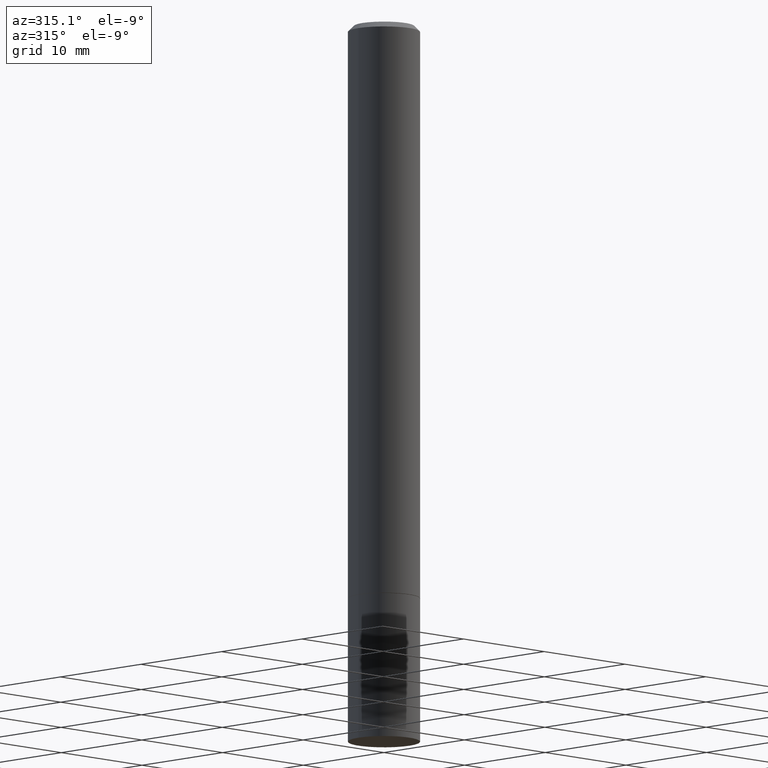
[diagram: clean part render]
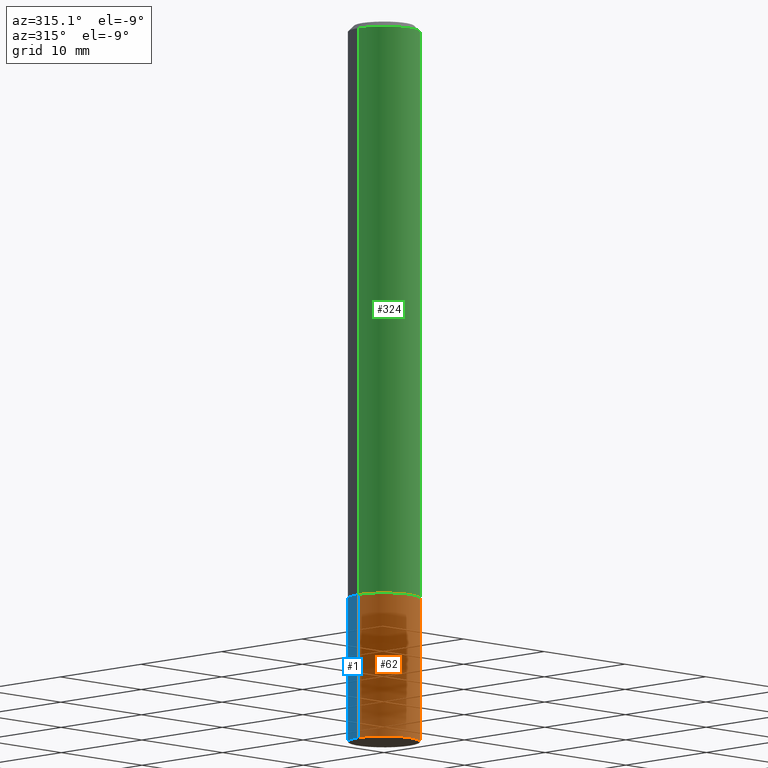
[diagram: same view with three faces highlighted in distinct colors, each labeled with its STEP entity id]
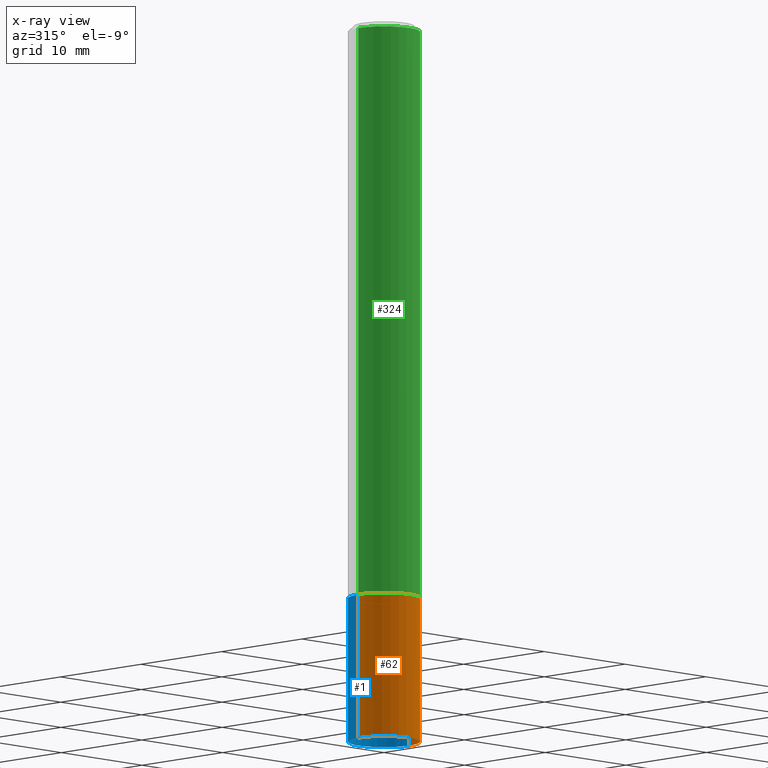
[diagram: x-ray of the same camera — body ghosted, the three highlighted faces saturated]
A machine part, auxiliary view with three faces highlighted in distinct colors.
The next image is the same camera in x-ray (body ghosted, the three faces saturated) — at least one of them is partly hidden behind the body in this view.
Their STEP definitions:

[orange] entity #62 — the highlighted cylindrical surface (edge-blend (fillet) strip) has radius 3.175 mm, axis along (-0, 0, 1).
#2 = LINE ( 'NONE', #174, #333 ) ;
#17 = AXIS2_PLACEMENT_3D ( 'NONE', #111, #34, #117 ) ;
#34 = DIRECTION ( 'NONE',  ( -2.445468806185136597E-29, 3.491481338843145583E-15, 1.000000000000000000 ) ) ;
#62 = ADVANCED_FACE ( 'NONE', ( #106 ), #258, .T. ) ;
#67 = CARTESIAN_POINT ( 'NONE',  ( 6.113672015462842613E-29, -8.728703347107864943E-15, -2.500000000000000000 ) ) ;
#70 = DIRECTION ( 'NONE',  ( -2.445468806185136597E-29, 3.491481338843145583E-15, 1.000000000000000000 ) ) ;
#86 = CARTESIAN_POINT ( 'NONE',  ( -0.1250000000000000000, -6.967654592696952427E-15, -2.000000000000000000 ) ) ;
#99 = ORIENTED_EDGE ( 'NONE', *, *, #347, .T. ) ;
#106 = FACE_OUTER_BOUND ( 'NONE', #160, .T. ) ;
#111 = CARTESIAN_POINT ( 'NONE',  ( 0.000000000000000000, 0.000000000000000000, 0.000000000000000000 ) ) ;
#117 = DIRECTION ( 'NONE',  ( 1.000000000000000000, -6.982962677686266711E-15, 4.876176775795935793E-29 ) ) ;
#123 = VERTEX_POINT ( 'NONE', #86 ) ;
#124 = DIRECTION ( 'NONE',  ( -2.445468806185136597E-29, 3.491481338843145583E-15, 1.000000000000000000 ) ) ;
#127 = CARTESIAN_POINT ( 'NONE',  ( 4.890937612370273194E-29, -6.982962677686291165E-15, -2.000000000000000000 ) ) ;
#134 = CIRCLE ( 'NONE', #230, 0.1250000000000000000 ) ;
#160 = EDGE_LOOP ( 'NONE', ( #289, #99, #318, #224 ) ) ;
#163 = CIRCLE ( 'NONE', #364, 0.1250000000000000000 ) ;
#174 = CARTESIAN_POINT ( 'NONE',  ( -0.1250000000000000000, 8.881784197001252323E-16, -6.148668862818632227E-30 ) ) ;
#180 = EDGE_CURVE ( 'NONE', #184, #123, #2, .T. ) ;
#184 = VERTEX_POINT ( 'NONE', #314 ) ;
#186 = VERTEX_POINT ( 'NONE', #256 ) ;
#207 = DIRECTION ( 'NONE',  ( -2.445468806185136877E-29, 3.491481338843145188E-15, 1.000000000000000000 ) ) ;
#219 = VERTEX_POINT ( 'NONE', #254 ) ;
#224 = ORIENTED_EDGE ( 'NONE', *, *, #363, .F. ) ;
#230 = AXIS2_PLACEMENT_3D ( 'NONE', #67, #124, #271 ) ;
#231 = CARTESIAN_POINT ( 'NONE',  ( 0.1250000000000000000, -8.728703347107833388E-16, 6.095220969744919741E-30 ) ) ;
#254 = CARTESIAN_POINT ( 'NONE',  ( 0.1250000000000000000, -7.855833012397075293E-15, -2.000000000000000000 ) ) ;
#256 = CARTESIAN_POINT ( 'NONE',  ( 0.1250000000000000000, -9.601573681818648281E-15, -2.500000000000000000 ) ) ;
#258 = CYLINDRICAL_SURFACE ( 'NONE', #17, 0.1250000000000000000 ) ;
#259 = EDGE_CURVE ( 'NONE', #186, #219, #337, .T. ) ;
#271 = DIRECTION ( 'NONE',  ( 1.000000000000000000, -6.982962677686270655E-15, 0.000000000000000000 ) ) ;
#285 = DIRECTION ( 'NONE',  ( -2.445468806185136877E-29, 3.491481338843145188E-15, 1.000000000000000000 ) ) ;
#289 = ORIENTED_EDGE ( 'NONE', *, *, #180, .F. ) ;
#293 = DIRECTION ( 'NONE',  ( 1.000000000000000000, -6.982962677686270655E-15, 0.000000000000000000 ) ) ;
#314 = CARTESIAN_POINT ( 'NONE',  ( -0.1250000000000000000, -6.967654592696952427E-15, -2.500000000000000000 ) ) ;
#318 = ORIENTED_EDGE ( 'NONE', *, *, #259, .T. ) ;
#333 = VECTOR ( 'NONE', #207, 39.37007874015748143 ) ;
#337 = LINE ( 'NONE', #231, #352 ) ;
#347 = EDGE_CURVE ( 'NONE', #184, #186, #134, .T. ) ;
#352 = VECTOR ( 'NONE', #285, 39.37007874015748143 ) ;
#363 = EDGE_CURVE ( 'NONE', #123, #219, #163, .T. ) ;
#364 = AXIS2_PLACEMENT_3D ( 'NONE', #127, #70, #293 ) ;

[blue] entity #1 — the highlighted cylindrical surface (edge-blend (fillet) strip) has radius 3.175 mm, axis along (-0, 0, 1).
#1 = ADVANCED_FACE ( 'NONE', ( #328 ), #240, .T. ) ;
#2 = LINE ( 'NONE', #174, #333 ) ;
#7 = DIRECTION ( 'NONE',  ( -2.445468806185136597E-29, 3.491481338843145583E-15, 1.000000000000000000 ) ) ;
#18 = CIRCLE ( 'NONE', #28, 0.1250000000000000000 ) ;
#28 = AXIS2_PLACEMENT_3D ( 'NONE', #291, #316, #159 ) ;
#42 = DIRECTION ( 'NONE',  ( -2.445468806185136597E-29, 3.491481338843145583E-15, 1.000000000000000000 ) ) ;
#86 = CARTESIAN_POINT ( 'NONE',  ( -0.1250000000000000000, -6.967654592696952427E-15, -2.000000000000000000 ) ) ;
#123 = VERTEX_POINT ( 'NONE', #86 ) ;
#131 = DIRECTION ( 'NONE',  ( 1.000000000000000000, -6.982962677686270655E-15, 0.000000000000000000 ) ) ;
#154 = CARTESIAN_POINT ( 'NONE',  ( 4.890937612370273194E-29, -6.982962677686291165E-15, -2.000000000000000000 ) ) ;
#158 = DIRECTION ( 'NONE',  ( 1.000000000000000000, -6.982962677686266711E-15, 4.876176775795935793E-29 ) ) ;
#159 = DIRECTION ( 'NONE',  ( 1.000000000000000000, -6.982962677686270655E-15, 0.000000000000000000 ) ) ;
#174 = CARTESIAN_POINT ( 'NONE',  ( -0.1250000000000000000, 8.881784197001252323E-16, -6.148668862818632227E-30 ) ) ;
#180 = EDGE_CURVE ( 'NONE', #184, #123, #2, .T. ) ;
#184 = VERTEX_POINT ( 'NONE', #314 ) ;
#186 = VERTEX_POINT ( 'NONE', #256 ) ;
#196 = EDGE_LOOP ( 'NONE', ( #206, #315, #237, #262 ) ) ;
#206 = ORIENTED_EDGE ( 'NONE', *, *, #335, .T. ) ;
#207 = DIRECTION ( 'NONE',  ( -2.445468806185136877E-29, 3.491481338843145188E-15, 1.000000000000000000 ) ) ;
#216 = CARTESIAN_POINT ( 'NONE',  ( 0.000000000000000000, 0.000000000000000000, 0.000000000000000000 ) ) ;
#219 = VERTEX_POINT ( 'NONE', #254 ) ;
#223 = AXIS2_PLACEMENT_3D ( 'NONE', #216, #42, #158 ) ;
#225 = AXIS2_PLACEMENT_3D ( 'NONE', #154, #7, #131 ) ;
#231 = CARTESIAN_POINT ( 'NONE',  ( 0.1250000000000000000, -8.728703347107833388E-16, 6.095220969744919741E-30 ) ) ;
#237 = ORIENTED_EDGE ( 'NONE', *, *, #336, .F. ) ;
#240 = CYLINDRICAL_SURFACE ( 'NONE', #223, 0.1250000000000000000 ) ;
#254 = CARTESIAN_POINT ( 'NONE',  ( 0.1250000000000000000, -7.855833012397075293E-15, -2.000000000000000000 ) ) ;
#256 = CARTESIAN_POINT ( 'NONE',  ( 0.1250000000000000000, -9.601573681818648281E-15, -2.500000000000000000 ) ) ;
#259 = EDGE_CURVE ( 'NONE', #186, #219, #337, .T. ) ;
#262 = ORIENTED_EDGE ( 'NONE', *, *, #259, .F. ) ;
#285 = DIRECTION ( 'NONE',  ( -2.445468806185136877E-29, 3.491481338843145188E-15, 1.000000000000000000 ) ) ;
#291 = CARTESIAN_POINT ( 'NONE',  ( 6.113672015462842613E-29, -8.728703347107864943E-15, -2.500000000000000000 ) ) ;
#312 = CIRCLE ( 'NONE', #225, 0.1250000000000000000 ) ;
#314 = CARTESIAN_POINT ( 'NONE',  ( -0.1250000000000000000, -6.967654592696952427E-15, -2.500000000000000000 ) ) ;
#315 = ORIENTED_EDGE ( 'NONE', *, *, #180, .T. ) ;
#316 = DIRECTION ( 'NONE',  ( -2.445468806185136597E-29, 3.491481338843145583E-15, 1.000000000000000000 ) ) ;
#328 = FACE_OUTER_BOUND ( 'NONE', #196, .T. ) ;
#333 = VECTOR ( 'NONE', #207, 39.37007874015748143 ) ;
#335 = EDGE_CURVE ( 'NONE', #186, #184, #18, .T. ) ;
#336 = EDGE_CURVE ( 'NONE', #219, #123, #312, .T. ) ;
#337 = LINE ( 'NONE', #231, #352 ) ;
#352 = VECTOR ( 'NONE', #285, 39.37007874015748143 ) ;

[green] entity #324 — the highlighted cylindrical surface (edge-blend (fillet) strip) has radius 3.175 mm, axis along (-0, 0, 1).
#11 = LINE ( 'NONE', #97, #87 ) ;
#14 = CARTESIAN_POINT ( 'NONE',  ( 0.1249999999999997224, -9.273918764983025741E-16, -0.02000000000000003511 ) ) ;
#16 = VERTEX_POINT ( 'NONE', #189 ) ;
#46 = ORIENTED_EDGE ( 'NONE', *, *, #339, .F. ) ;
#61 = EDGE_CURVE ( 'NONE', #128, #16, #172, .T. ) ;
#71 = EDGE_CURVE ( 'NONE', #16, #272, #82, .T. ) ;
#79 = VERTEX_POINT ( 'NONE', #310 ) ;
#82 = LINE ( 'NONE', #227, #93 ) ;
#87 = VECTOR ( 'NONE', #239, 39.37007874015748143 ) ;
#93 = VECTOR ( 'NONE', #361, 39.37007874015748143 ) ;
#95 = DIRECTION ( 'NONE',  ( 1.000000000000000000, -6.982962677686266711E-15, 4.876176775795935793E-29 ) ) ;
#96 = DIRECTION ( 'NONE',  ( -2.445468806185136597E-29, 3.491481338843145583E-15, 1.000000000000000000 ) ) ;
#97 = CARTESIAN_POINT ( 'NONE',  ( -0.1249999999999998612, 8.881784197001242463E-16, -6.148668862818625221E-30 ) ) ;
#104 = ORIENTED_EDGE ( 'NONE', *, *, #71, .T. ) ;
#120 = CARTESIAN_POINT ( 'NONE',  ( 4.890937612370281041E-31, -6.982962677686302702E-17, -0.02000000000000003511 ) ) ;
#128 = VERTEX_POINT ( 'NONE', #284 ) ;
#129 = CARTESIAN_POINT ( 'NONE',  ( 0.000000000000000000, 0.000000000000000000, 0.000000000000000000 ) ) ;
#132 = AXIS2_PLACEMENT_3D ( 'NONE', #323, #96, #275 ) ;
#152 = ORIENTED_EDGE ( 'NONE', *, *, #61, .T. ) ;
#157 = CYLINDRICAL_SURFACE ( 'NONE', #178, 0.1249999999999998612 ) ;
#171 = DIRECTION ( 'NONE',  ( -2.445468806185136597E-29, 3.491481338843145583E-15, 1.000000000000000000 ) ) ;
#172 = CIRCLE ( 'NONE', #132, 0.1250000000000000000 ) ;
#178 = AXIS2_PLACEMENT_3D ( 'NONE', #129, #269, #95 ) ;
#189 = CARTESIAN_POINT ( 'NONE',  ( 0.1250000000000000000, -7.852341531058230708E-15, -1.998999999999999888 ) ) ;
#227 = CARTESIAN_POINT ( 'NONE',  ( 0.1249999999999998612, -8.728703347107823527E-16, 6.095220969744912735E-30 ) ) ;
#236 = FACE_OUTER_BOUND ( 'NONE', #267, .T. ) ;
#239 = DIRECTION ( 'NONE',  ( -2.445468806185136877E-29, 3.491481338843145188E-15, 1.000000000000000000 ) ) ;
#253 = EDGE_CURVE ( 'NONE', #79, #272, #360, .T. ) ;
#267 = EDGE_LOOP ( 'NONE', ( #46, #152, #104, #344 ) ) ;
#269 = DIRECTION ( 'NONE',  ( -2.445468806185136597E-29, 3.491481338843145583E-15, 1.000000000000000000 ) ) ;
#272 = VERTEX_POINT ( 'NONE', #14 ) ;
#273 = AXIS2_PLACEMENT_3D ( 'NONE', #120, #171, #366 ) ;
#275 = DIRECTION ( 'NONE',  ( 1.000000000000000000, -6.982962677686262766E-15, 0.000000000000000000 ) ) ;
#284 = CARTESIAN_POINT ( 'NONE',  ( -0.1250000000000000000, -2.636471991862026157E-15, -1.998999999999999888 ) ) ;
#310 = CARTESIAN_POINT ( 'NONE',  ( -0.1249999999999997224, 8.030407079339183643E-16, -0.02000000000000003511 ) ) ;
#323 = CARTESIAN_POINT ( 'NONE',  ( 4.888492143564087591E-29, -6.979471196347447369E-15, -1.998999999999999888 ) ) ;
#324 = ADVANCED_FACE ( 'NONE', ( #236 ), #157, .T. ) ;
#339 = EDGE_CURVE ( 'NONE', #128, #79, #11, .T. ) ;
#344 = ORIENTED_EDGE ( 'NONE', *, *, #253, .F. ) ;
#360 = CIRCLE ( 'NONE', #273, 0.1249999999999997224 ) ;
#361 = DIRECTION ( 'NONE',  ( -2.445468806185136877E-29, 3.491481338843145188E-15, 1.000000000000000000 ) ) ;
#366 = DIRECTION ( 'NONE',  ( 1.000000000000000000, -6.982962677686266711E-15, 0.000000000000000000 ) ) ;